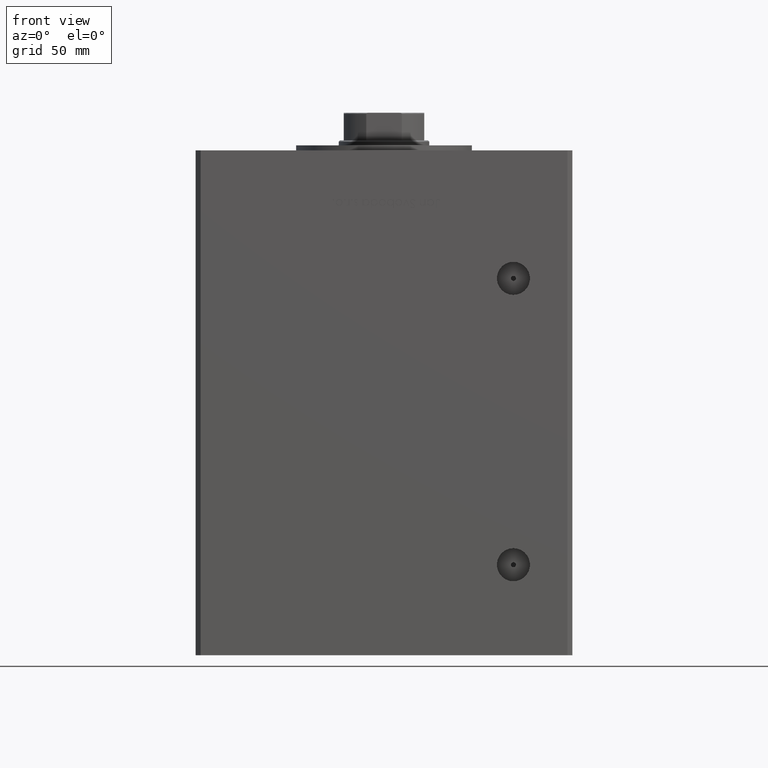
[diagram: clean part render]
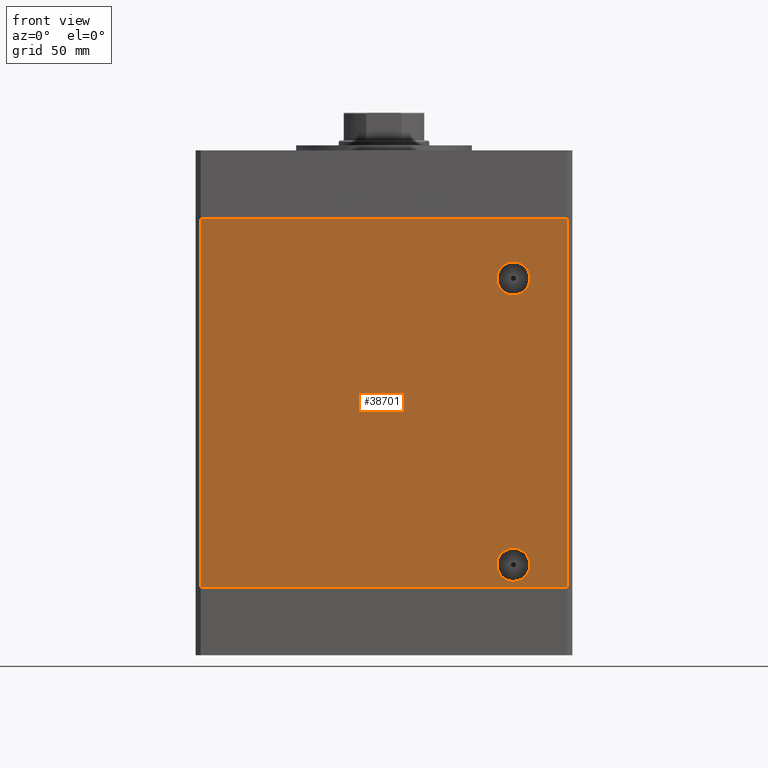
[diagram: same view with one face highlighted and labeled with its STEP entity id]
A machine part, front view. The second image highlights one B-rep face of the part: STEP entity #38701.
In plain terms, the highlighted planar face has unit normal (0, 1, 0).
Its self-contained STEP definition (entity closure, byte-faithful):
#716 = DIRECTION ( 'NONE',  ( 0.000000000000000000, 0.000000000000000000, -1.000000000000000000 ) ) ;
#1085 = EDGE_LOOP ( 'NONE', ( #26955, #7712 ) ) ;
#3093 = DIRECTION ( 'NONE',  ( 0.000000000000000000, 0.000000000000000000, -1.000000000000000000 ) ) ;
#3554 = LINE ( 'NONE', #39654, #32091 ) ;
#3734 = AXIS2_PLACEMENT_3D ( 'NONE', #26897, #38265, #38518 ) ;
#4434 = DIRECTION ( 'NONE',  ( 0.000000000000000000, -1.000000000000000000, 0.000000000000000000 ) ) ;
#6363 = VERTEX_POINT ( 'NONE', #20358 ) ;
#6777 = CARTESIAN_POINT ( 'NONE',  ( -72.99999999999998579, -62.50000000000000000, 147.0000000000000000 ) ) ;
#7712 = ORIENTED_EDGE ( 'NONE', *, *, #9556, .T. ) ;
#8305 = CARTESIAN_POINT ( 'NONE',  ( 51.49999999999998579, -62.50000000000000000, 2.420000000000013252 ) ) ;
#9269 = VERTEX_POINT ( 'NONE', #19581 ) ;
#9439 = ORIENTED_EDGE ( 'NONE', *, *, #34938, .F. ) ;
#9556 = EDGE_CURVE ( 'NONE', #6363, #27669, #45801, .T. ) ;
#10025 = VERTEX_POINT ( 'NONE', #29177 ) ;
#10377 = AXIS2_PLACEMENT_3D ( 'NONE', #6777, #18657, #14450 ) ;
#10977 = EDGE_CURVE ( 'NONE', #27669, #6363, #15584, .T. ) ;
#11014 = DIRECTION ( 'NONE',  ( 0.000000000000000000, -1.000000000000000000, 0.000000000000000000 ) ) ;
#11622 = CARTESIAN_POINT ( 'NONE',  ( 51.49999999999998579, -62.50000000000000000, 15.58000000000000362 ) ) ;
#11878 = EDGE_LOOP ( 'NONE', ( #14894, #20457 ) ) ;
#11945 = CARTESIAN_POINT ( 'NONE',  ( 72.99999999999998579, -62.50000000000000000, 0.000000000000000000 ) ) ;
#12263 = ORIENTED_EDGE ( 'NONE', *, *, #30060, .T. ) ;
#12341 = CARTESIAN_POINT ( 'NONE',  ( 51.49999999999998579, -62.50000000000000000, 9.000000000000007105 ) ) ;
#12582 = VERTEX_POINT ( 'NONE', #13912 ) ;
#13912 = CARTESIAN_POINT ( 'NONE',  ( 72.99999999999998579, -62.50000000000000000, 147.0000000000000000 ) ) ;
#14175 = VERTEX_POINT ( 'NONE', #11945 ) ;
#14450 = DIRECTION ( 'NONE',  ( 0.000000000000000000, -0.000000000000000000, 1.000000000000000000 ) ) ;
#14813 = LINE ( 'NONE', #51409, #35360 ) ;
#14894 = ORIENTED_EDGE ( 'NONE', *, *, #48367, .F. ) ;
#15584 = CIRCLE ( 'NONE', #21504, 6.580000000000002736 ) ;
#15664 = EDGE_CURVE ( 'NONE', #30169, #35776, #46026, .T. ) ;
#18657 = DIRECTION ( 'NONE',  ( 0.000000000000000000, 1.000000000000000000, 0.000000000000000000 ) ) ;
#18744 = VECTOR ( 'NONE', #30994, 1000.000000000000000 ) ;
#19393 = AXIS2_PLACEMENT_3D ( 'NONE', #31034, #11014, #3093 ) ;
#19581 = CARTESIAN_POINT ( 'NONE',  ( -72.99999999999998579, -62.50000000000000000, 147.0000000000000000 ) ) ;
#19637 = DIRECTION ( 'NONE',  ( -0.000000000000000000, -0.000000000000000000, -1.000000000000000000 ) ) ;
#20358 = CARTESIAN_POINT ( 'NONE',  ( 51.49999999999997158, -62.50000000000000000, 129.5800000000000125 ) ) ;
#20457 = ORIENTED_EDGE ( 'NONE', *, *, #15664, .F. ) ;
#21131 = CARTESIAN_POINT ( 'NONE',  ( 51.49999999999997158, -62.50000000000000000, 116.4200000000000159 ) ) ;
#21504 = AXIS2_PLACEMENT_3D ( 'NONE', #48865, #41483, #33579 ) ;
#22353 = PLANE ( 'NONE',  #10377 ) ;
#23109 = FACE_BOUND ( 'NONE', #11878, .T. ) ;
#23641 = DIRECTION ( 'NONE',  ( -0.000000000000000000, -0.000000000000000000, -1.000000000000000000 ) ) ;
#23906 = LINE ( 'NONE', #27598, #51391 ) ;
#24118 = LINE ( 'NONE', #35203, #18744 ) ;
#24950 = AXIS2_PLACEMENT_3D ( 'NONE', #12341, #4434, #716 ) ;
#26897 = CARTESIAN_POINT ( 'NONE',  ( 51.49999999999997158, -62.50000000000000000, 123.0000000000000142 ) ) ;
#26955 = ORIENTED_EDGE ( 'NONE', *, *, #10977, .T. ) ;
#27598 = CARTESIAN_POINT ( 'NONE',  ( -72.99999999999998579, -62.50000000000000000, 147.0000000000000000 ) ) ;
#27669 = VERTEX_POINT ( 'NONE', #21131 ) ;
#29177 = CARTESIAN_POINT ( 'NONE',  ( -72.99999999999998579, -62.50000000000000000, 0.000000000000000000 ) ) ;
#30060 = EDGE_CURVE ( 'NONE', #10025, #14175, #14813, .T. ) ;
#30169 = VERTEX_POINT ( 'NONE', #11622 ) ;
#30994 = DIRECTION ( 'NONE',  ( 1.000000000000000000, 0.000000000000000000, 0.000000000000000000 ) ) ;
#31034 = CARTESIAN_POINT ( 'NONE',  ( 51.49999999999998579, -62.50000000000000000, 9.000000000000007105 ) ) ;
#32091 = VECTOR ( 'NONE', #19637, 1000.000000000000000 ) ;
#33579 = DIRECTION ( 'NONE',  ( 0.000000000000000000, 0.000000000000000000, -1.000000000000000000 ) ) ;
#34360 = EDGE_LOOP ( 'NONE', ( #12263, #9439, #41656, #47462 ) ) ;
#34938 = EDGE_CURVE ( 'NONE', #12582, #14175, #3554, .T. ) ;
#35203 = CARTESIAN_POINT ( 'NONE',  ( -72.99999999999998579, -62.50000000000000000, 147.0000000000000000 ) ) ;
#35360 = VECTOR ( 'NONE', #39050, 1000.000000000000000 ) ;
#35776 = VERTEX_POINT ( 'NONE', #8305 ) ;
#38265 = DIRECTION ( 'NONE',  ( -0.000000000000000000, 1.000000000000000000, -0.000000000000000000 ) ) ;
#38518 = DIRECTION ( 'NONE',  ( 0.000000000000000000, 0.000000000000000000, -1.000000000000000000 ) ) ;
#38701 = ADVANCED_FACE ( 'NONE', ( #23109, #51287, #42881 ), #22353, .F. ) ;
#39050 = DIRECTION ( 'NONE',  ( 1.000000000000000000, 0.000000000000000000, 0.000000000000000000 ) ) ;
#39654 = CARTESIAN_POINT ( 'NONE',  ( 72.99999999999998579, -62.50000000000000000, 147.0000000000000000 ) ) ;
#41483 = DIRECTION ( 'NONE',  ( -0.000000000000000000, 1.000000000000000000, -0.000000000000000000 ) ) ;
#41656 = ORIENTED_EDGE ( 'NONE', *, *, #42863, .F. ) ;
#42863 = EDGE_CURVE ( 'NONE', #9269, #12582, #24118, .T. ) ;
#42881 = FACE_BOUND ( 'NONE', #1085, .T. ) ;
#45801 = CIRCLE ( 'NONE', #3734, 6.580000000000002736 ) ;
#46026 = CIRCLE ( 'NONE', #24950, 6.579999999999994742 ) ;
#47155 = CIRCLE ( 'NONE', #19393, 6.579999999999994742 ) ;
#47462 = ORIENTED_EDGE ( 'NONE', *, *, #48660, .T. ) ;
#48367 = EDGE_CURVE ( 'NONE', #35776, #30169, #47155, .T. ) ;
#48660 = EDGE_CURVE ( 'NONE', #9269, #10025, #23906, .T. ) ;
#48865 = CARTESIAN_POINT ( 'NONE',  ( 51.49999999999997158, -62.50000000000000000, 123.0000000000000142 ) ) ;
#51287 = FACE_OUTER_BOUND ( 'NONE', #34360, .T. ) ;
#51391 = VECTOR ( 'NONE', #23641, 1000.000000000000000 ) ;
#51409 = CARTESIAN_POINT ( 'NONE',  ( -72.99999999999998579, -62.50000000000000000, 0.000000000000000000 ) ) ;